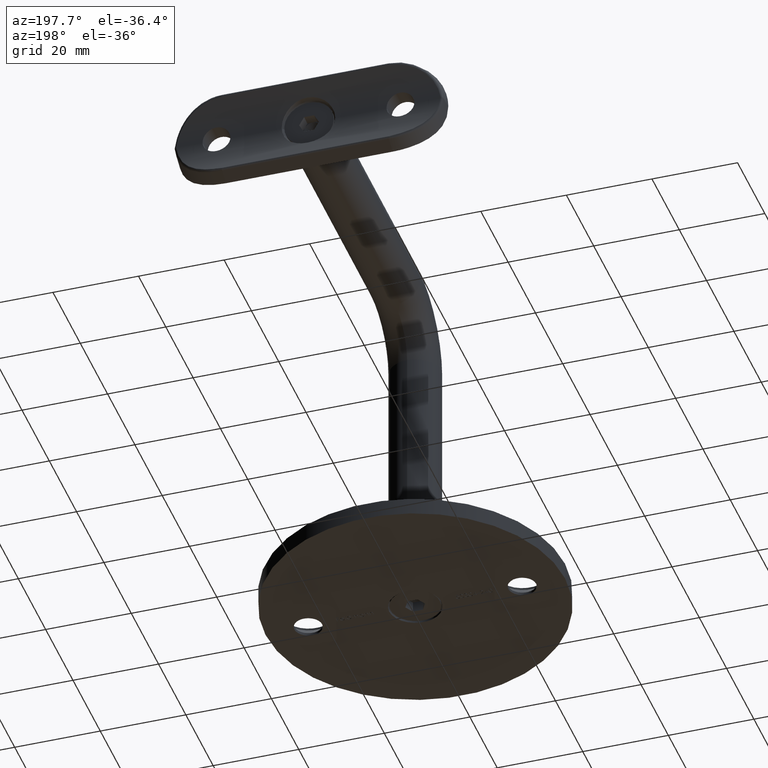
[diagram: clean part render]
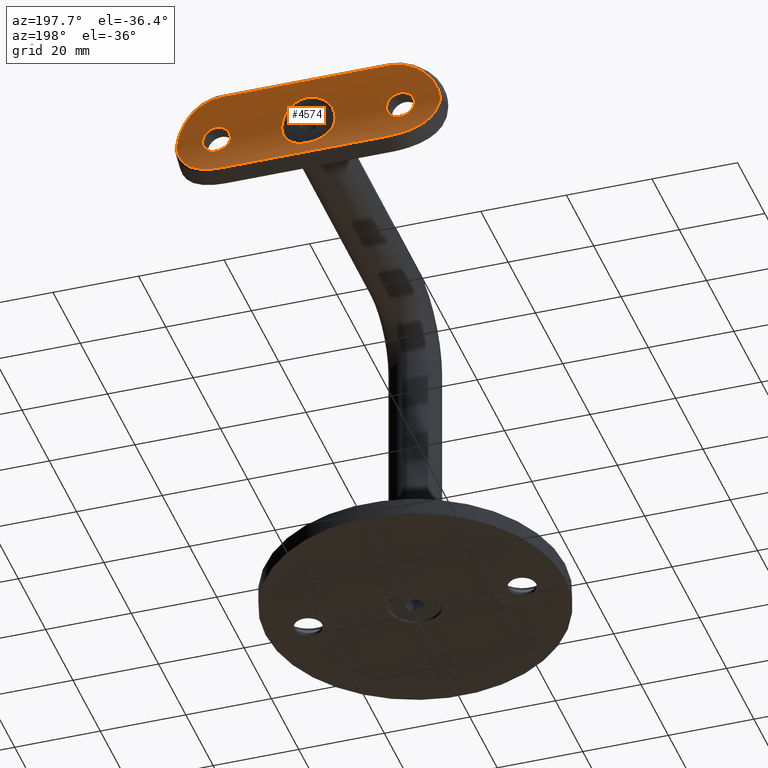
[diagram: same view with one face highlighted and labeled with its STEP entity id]
A machine part, auxiliary view. The second image highlights one B-rep face of the part: STEP entity #4574.
In plain terms, the highlighted cylindrical surface (partial cylindrical patch) has radius 21.2 mm, axis along (-1, -0, 0).
Its self-contained STEP definition (entity closure, byte-faithful):
#12 = CARTESIAN_POINT ( 'NONE',  ( -4.707645724980025648, 0.5272206391724109098, -4.130946839769451984 ) ) ;
#93 = CARTESIAN_POINT ( 'NONE',  ( -5.422976845275771396, 0.7039789746981586216, -3.134116042011573899 ) ) ;
#116 = CARTESIAN_POINT ( 'NONE',  ( 2.146772466492731013, 0.1084242658263275677, -19.05056654316347320 ) ) ;
#123 = EDGE_CURVE ( 'NONE', #10272, #1168, #4560, .T. ) ;
#146 = CARTESIAN_POINT ( 'NONE',  ( -1.986840235901172091, 0.09255405855546659788, 24.08083716629823812 ) ) ;
#164 = CARTESIAN_POINT ( 'NONE',  ( -0.6963605954796037167, 0.008645272120852618564, 30.79787574279946227 ) ) ;
#170 = CARTESIAN_POINT ( 'NONE',  ( 2.448245710141878195, 0.1413021867626944594, -23.64788291266891207 ) ) ;
#191 = VERTEX_POINT ( 'NONE', #14380 ) ;
#287 = VERTEX_POINT ( 'NONE', #4214 ) ;
#348 = CARTESIAN_POINT ( 'NONE',  ( 5.306312453125241468, 0.6744888501974815043, 3.308583858081395768 ) ) ;
#390 = CARTESIAN_POINT ( 'NONE',  ( 9.566484978522375116, 2.281063973388878896, 21.92232553221910507 ) ) ;
#399 = CARTESIAN_POINT ( 'NONE',  ( 3.140809521346286548, 0.2311535060075870229, 5.418768491723931824 ) ) ;
#400 = CARTESIAN_POINT ( 'NONE',  ( -3.646910745505126616, 0.3153270595898976514, -5.079778533533594320 ) ) ;
#438 = CARTESIAN_POINT ( 'NONE',  ( -2.146746746564081931, 0.1084328004752495300, -19.05074617262831538 ) ) ;
#457 = CARTESIAN_POINT ( 'NONE',  ( 5.848929209183459044, 0.8226445954373750036, -2.212212337359573677 ) ) ;
#458 = CARTESIAN_POINT ( 'NONE',  ( -3.140879071071891904, 0.2311561442244723097, 5.418772609613540681 ) ) ;
#519 = CARTESIAN_POINT ( 'NONE',  ( -1.439361432263682516, 0.04801136877107863715, -18.57843283337540541 ) ) ;
#524 = CYLINDRICAL_SURFACE ( 'NONE', #10859, 21.19999999999999574 ) ;
#542 = CARTESIAN_POINT ( 'NONE',  ( 4.277827131874097688, 0.4355678912589457941, -4.561112980212947754 ) ) ;
#590 = CARTESIAN_POINT ( 'NONE',  ( -2.583674240239131503, 0.1576915756132384328, -19.51705697634180936 ) ) ;
#605 = CARTESIAN_POINT ( 'NONE',  ( 0.8234910764539794537, 0.01219155373319959386, -6.208994146085437649 ) ) ;
#652 = CARTESIAN_POINT ( 'NONE',  ( 0.6963605954796017183, 0.008645272120852314987, 30.79787574279945872 ) ) ;
#798 = DIRECTION ( 'NONE',  ( -1.000000000000000000, 0.000000000000000000, 0.000000000000000000 ) ) ;
#986 = B_SPLINE_CURVE_WITH_KNOTS ( 'NONE', 3,
 ( #18616, #18692, #605, #9580, #18499, #3336, #12350, #15478, #16973, #6417, #17117, #4958, #542, #3514, #3588, #15525, #4847, #457, #3465, #15407, #3407, #12459, #13989, #15589, #4896, #12406, #16924, #18422, #9375, #6493, #348, #1844, #17040, #13914, #9514, #7940, #9430, #399, #1994, #14058, #6542, #17241, #3665, #11168, #14273, #5228 ),
 .UNSPECIFIED., .F., .F.,
 ( 4, 2, 2, 2, 2, 2, 2, 2, 2, 2, 2, 2, 2, 2, 2, 2, 2, 2, 2, 2, 2, 2, 4 ),
 ( 0.000000000000000000, 0.001228132618127827621, 0.001842198927191741322, 0.002456265236255654807, 0.003684397854383480910, 0.004298464163447393745, 0.004912530472511307013, 0.006140663090639133549, 0.007368795708766960953, 0.007982862017830874221, 0.008596928326894789224, 0.009825060945022614026, 0.01105319356315043883, 0.01228132618127826536, 0.01289539249034217690, 0.01350945879940608843, 0.01412352510846999823, 0.01473759141753390976, 0.01596572403566174150, 0.01719385665378957151, 0.01842198927191740151, 0.01903605558098131478, 0.01965012189004522805 ),
 .UNSPECIFIED. ) ;
#1133 = B_SPLINE_CURVE_WITH_KNOTS ( 'NONE', 3,
 ( #8132, #11217, #1899, #14043, #3449, #519, #11061, #1978, #438, #6475, #590, #18759, #11144, #7982, #18543, #18821, #5088, #15726, #13966, #15646, #6591, #2098, #12660, #17100, #12715, #2041, #15570, #3643, #14172, #5139, #6666, #8194, #9490, #3718 ),
 .UNSPECIFIED., .F., .F.,
 ( 4, 2, 2, 2, 2, 2, 2, 2, 2, 2, 2, 2, 2, 2, 2, 2, 4 ),
 ( 0.01017598832819750082, 0.01081183111334636446, 0.01144767389849522810, 0.01208351668364409173, 0.01271935946879295537, 0.01335520225394181901, 0.01399104503909068091, 0.01462688782423954455, 0.01526273060938840818, 0.01589857339453727009, 0.01653441617968613719, 0.01717025896483499736, 0.01780610174998386100, 0.01844194453513272464, 0.01907778732028158827, 0.01971363010543045191, 0.02034947289057931555 ),
 .UNSPECIFIED. ) ;
#1168 = VERTEX_POINT ( 'NONE', #6768 ) ;
#1328 = CARTESIAN_POINT ( 'NONE',  ( -3.084168572394265340, 0.2253804314946667164, 22.54674660612335657 ) ) ;
#1341 = CARTESIAN_POINT ( 'NONE',  ( -7.961314996402538924, 1.550569222153817650, -26.06667105966472420 ) ) ;
#1350 = CARTESIAN_POINT ( 'NONE',  ( 1.387778780781445676E-14, 0.000000000000000000, -30.89612722721100369 ) ) ;
#1380 = CARTESIAN_POINT ( 'NONE',  ( 1.982938509338513233, 0.09220263752459890993, 18.91635450782080596 ) ) ;
#1386 = CARTESIAN_POINT ( 'NONE',  ( 3.980101132466330944E-16, 1.666400480375174686E-13, 18.25000000000005329 ) ) ;
#1402 = CARTESIAN_POINT ( 'NONE',  ( -8.138925242327825771, 1.623748329730087203, -25.77605957762519395 ) ) ;
#1450 = CARTESIAN_POINT ( 'NONE',  ( 2.920988639077604976, 0.2020350234706673187, 22.94052626282845253 ) ) ;
#1483 = CARTESIAN_POINT ( 'NONE',  ( 1.387778780781445676E-14, 0.000000000000000000, -30.89612722721100369 ) ) ;
#1495 = CARTESIAN_POINT ( 'NONE',  ( 8.904028815678717734, 1.958941227809908092, -24.25532854542019123 ) ) ;
#1503 = CARTESIAN_POINT ( 'NONE',  ( 2.584254445682796941, 0.1577643001857342298, -19.51785711993775507 ) ) ;
#1528 = CARTESIAN_POINT ( 'NONE',  ( 2.584254445682800938, 0.1577643001857335636, 19.51785711993776573 ) ) ;
#1549 = CARTESIAN_POINT ( 'NONE',  ( -9.498101785892117732, 2.246516363973550146, -22.26151695138478104 ) ) ;
#1561 = CARTESIAN_POINT ( 'NONE',  ( 0.000000000000000000, 0.000000000000000000, -24.75000000000009237 ) ) ;
#1580 = CARTESIAN_POINT ( 'NONE',  ( 0.2150763702856136605, 2.668153783851045144E-17, 24.75000000000010658 ) ) ;
#1599 = CARTESIAN_POINT ( 'NONE',  ( -9.786144100064893436, 2.393847186285948503, -20.20379068883981688 ) ) ;
#1603 = CARTESIAN_POINT ( 'NONE',  ( -8.630651940699019420, 1.833049251100111743, 24.88160642046348414 ) ) ;
#1664 = CARTESIAN_POINT ( 'NONE',  ( 3.980101132466330944E-16, 1.662152414455550914E-13, -18.25000000000004974 ) ) ;
#1682 = CARTESIAN_POINT ( 'NONE',  ( 2.921096390877591986, 0.2020480752346212883, -20.05946724193338682 ) ) ;
#1732 = EDGE_CURVE ( 'NONE', #18971, #8040, #15095, .T. ) ;
#1739 = CARTESIAN_POINT ( 'NONE',  ( -7.369745280326733372, 1.320855561925882160, 26.90753331144383154 ) ) ;
#1750 = CARTESIAN_POINT ( 'NONE',  ( 2.148951533804915659, 0.1086589342490722476, -23.94730777981044767 ) ) ;
#1792 = CARTESIAN_POINT ( 'NONE',  ( -8.904028815678699971, 1.958941227809895658, -24.25532854542017702 ) ) ;
#1796 = CARTESIAN_POINT ( 'NONE',  ( -6.716344212987833906, 1.086700003243379564, 27.69146406474428801 ) ) ;
#1835 = ORIENTED_EDGE ( 'NONE', *, *, #16048, .T. ) ;
#1844 = CARTESIAN_POINT ( 'NONE',  ( 5.080515492331174165, 0.6174364535648202423, 3.645825191685927447 ) ) ;
#1845 = B_SPLINE_CURVE_WITH_KNOTS ( 'NONE', 3,
 ( #3136, #13991, #12088, #6494, #16974, #15526, #458, #3064, #18558, #7605, #18154, #6419, #11020, #18046, #17042, #9516, #15055, #8989, #15127, #9127, #13602, #19559, #16593, #10517, #7941, #1995, #16666, #18501, #93, #10636, #12, #7532, #12534, #9431, #400, #13466, #12013, #6041, #4435, #9070, #4580, #18102 ),
 .UNSPECIFIED., .F., .F.,
 ( 4, 2, 2, 2, 2, 2, 2, 2, 2, 2, 2, 2, 2, 2, 2, 2, 2, 2, 2, 2, 4 ),
 ( 0.01965012189004522805, 0.02087792266696678750, 0.02210572344388834695, 0.02333352422080990293, 0.02456132499773146238, 0.02517522538619224037, 0.02578912577465301836, 0.02701692655157457434, 0.02824472732849613033, 0.02885862771695690832, 0.02947252810541768631, 0.03070032888233924576, 0.03131422927080002722, 0.03192812965926080521, 0.03315593043618236119, 0.03438373121310392411, 0.03499763160156470210, 0.03561153199002548009, 0.03683933276694703607, 0.03806713354386859899, 0.03929493432079015497 ),
 .UNSPECIFIED. ) ;
#1851 = CARTESIAN_POINT ( 'NONE',  ( -0.3496111230705252759, -2.823443157514334669E-17, 30.85369533552998078 ) ) ;
#1891 = CARTESIAN_POINT ( 'NONE',  ( 0.4279129834556275602, 0.003291781754169194243, 18.27127959555563308 ) ) ;
#1899 = CARTESIAN_POINT ( 'NONE',  ( -0.4233678462630732220, 0.003186138682740531029, -18.27058512242423305 ) ) ;
#1978 = CARTESIAN_POINT ( 'NONE',  ( -1.983327530134727734, 0.09222711508517912604, -18.91651586614755942 ) ) ;
#1994 = CARTESIAN_POINT ( 'NONE',  ( 2.774690400615363206, 0.1789415371176219516, 5.615163695568388569 ) ) ;
#1995 = CARTESIAN_POINT ( 'NONE',  ( -5.918924777022701811, 0.8429312984810782838, -2.017750617282092485 ) ) ;
#2024 = B_SPLINE_CURVE_WITH_KNOTS ( 'NONE', 3,
 ( #1386, #13272, #14663, #8799, #14801, #4229, #10300, #5688, #2588, #16201, #5827, #2850, #11683, #14736, #11804, #14854, #16396, #4374, #7329, #10358, #1328, #15193, #12073, #9168, #4486, #18143, #146, #6087, #7972, #7520, #3198, #13594, #7591, #7664 ),
 .UNSPECIFIED., .F., .F.,
 ( 4, 2, 2, 2, 2, 2, 2, 2, 2, 2, 2, 2, 2, 2, 2, 2, 4 ),
 ( 0.01017598832819751643, 0.01081183111334638181, 0.01144767389849524718, 0.01208351668364411255, 0.01271935946879297619, 0.01335520225394184156, 0.01399104503909070693, 0.01462688782423957057, 0.01526273060938843421, 0.01589857339453729784, 0.01653441617968616495, 0.01717025896483503206, 0.01780610174998389569, 0.01844194453513275933, 0.01907778732028162644, 0.01971363010543049007, 0.02034947289057935371 ),
 .UNSPECIFIED. ) ;
#2041 = CARTESIAN_POINT ( 'NONE',  ( -2.150169383533360623, 0.1087842265591556085, -23.94622616599953702 ) ) ;
#2098 = CARTESIAN_POINT ( 'NONE',  ( -2.921365973794397330, 0.2020862304459463688, -22.93992884807950361 ) ) ;
#2188 = CARTESIAN_POINT ( 'NONE',  ( 7.961314996402542477, 1.550569222153812987, 26.06667105966472420 ) ) ;
#2438 = FACE_BOUND ( 'NONE', #16581, .T. ) ;
#2442 = ORIENTED_EDGE ( 'NONE', *, *, #19243, .T. ) ;
#2588 = CARTESIAN_POINT ( 'NONE',  ( -2.146746746564088149, 0.1084328004752498215, 19.05074617262832959 ) ) ;
#2626 = CARTESIAN_POINT ( 'NONE',  ( 9.730737802063369912, 2.364718140661991264, -20.89720366981356392 ) ) ;
#2709 = CARTESIAN_POINT ( 'NONE',  ( 9.786144100064896989, 2.393847186285949391, -19.50000000000004974 ) ) ;
#2735 = EDGE_LOOP ( 'NONE', ( #10869, #18882, #13703, #15360, #14728, #1835 ) ) ;
#2801 = CARTESIAN_POINT ( 'NONE',  ( -4.588654109999604991, 0.4932363685649039375, -29.39409139998914000 ) ) ;
#2850 = CARTESIAN_POINT ( 'NONE',  ( -2.819361986327545200, 0.1879721493439700797, 19.86946830610344605 ) ) ;
#2914 = FACE_BOUND ( 'NONE', #5289, .T. ) ;
#2924 = CARTESIAN_POINT ( 'NONE',  ( 1.628966586198404620, 0.06193338804991646573, 24.32029146251907648 ) ) ;
#2964 = CARTESIAN_POINT ( 'NONE',  ( 4.588654109999626307, 0.4932363685649093776, -29.39409139998914355 ) ) ;
#2971 = CARTESIAN_POINT ( 'NONE',  ( 3.250079504832140920, 0.2506090012436514303, -21.28889479561997433 ) ) ;
#2993 = CARTESIAN_POINT ( 'NONE',  ( 3.250079504832142696, 0.2506090012436499870, 21.28889479561998499 ) ) ;
#3018 = CARTESIAN_POINT ( 'NONE',  ( 5.173748335101508111, 0.6336291749135072315, -29.01565426583600171 ) ) ;
#3024 = CARTESIAN_POINT ( 'NONE',  ( 1.982938509338514121, 0.09220263752459752216, -18.91635450782080596 ) ) ;
#3048 = CARTESIAN_POINT ( 'NONE',  ( 1.631209832495475354, 0.06211199978788668058, 18.68105983684548832 ) ) ;
#3064 = CARTESIAN_POINT ( 'NONE',  ( -3.817247833124775003, 0.3436783452235538938, 4.965565115301533439 ) ) ;
#3136 = CARTESIAN_POINT ( 'NONE',  ( 7.653600344584874865E-16, 1.649589026767971619E-13, 6.249999999999999112 ) ) ;
#3154 = CARTESIAN_POINT ( 'NONE',  ( -8.138925242327848864, 1.623748329730101858, 25.77605957762519751 ) ) ;
#3169 = CARTESIAN_POINT ( 'NONE',  ( 0.2122731573180401954, 1.658574155227461678E-13, -18.25000000000005329 ) ) ;
#3198 = CARTESIAN_POINT ( 'NONE',  ( -0.8473627998238463244, 0.01590005808953499564, 24.64488691449727398 ) ) ;
#3232 = CARTESIAN_POINT ( 'NONE',  ( 1.442403631853363954, 0.04820789140687745805, -24.42016099372732896 ) ) ;
#3235 = CARTESIAN_POINT ( 'NONE',  ( 9.786144100064896989, 2.393847186285949391, 31.50000000000009592 ) ) ;
#3336 = CARTESIAN_POINT ( 'NONE',  ( 2.017691307718032068, 0.09530856847514787566, -5.918936514102242086 ) ) ;
#3407 = CARTESIAN_POINT ( 'NONE',  ( 6.088604519415612870, 0.8930881013226109610, -1.426119836423863863 ) ) ;
#3449 = CARTESIAN_POINT ( 'NONE',  ( -1.048197691731639791, 0.02502264493834095022, -18.41639859241901078 ) ) ;
#3455 = CARTESIAN_POINT ( 'NONE',  ( 1.383814501144044584, 0.04241292802588791933, 30.65758117817206951 ) ) ;
#3465 = CARTESIAN_POINT ( 'NONE',  ( 5.918027562835895594, 0.8426709843892054019, -2.020282588223544451 ) ) ;
#3502 = CARTESIAN_POINT ( 'NONE',  ( 9.730737802063345043, 2.364718140661965062, 20.89720366981355326 ) ) ;
#3514 = CARTESIAN_POINT ( 'NONE',  ( 4.707499128267428112, 0.5271860881920453767, -4.131123129516026005 ) ) ;
#3552 = EDGE_CURVE ( 'NONE', #10225, #11564, #986, .T. ) ;
#3573 = CARTESIAN_POINT ( 'NONE',  ( 1.725848776065689760, 0.06769569826179447358, 30.57265922836111116 ) ) ;
#3588 = CARTESIAN_POINT ( 'NONE',  ( 4.965340698435812605, 0.5883310780807936569, -3.817917816163437728 ) ) ;
#3643 = CARTESIAN_POINT ( 'NONE',  ( -1.631443816220980558, 0.06211459562443492899, -24.31897954523555327 ) ) ;
#3665 = CARTESIAN_POINT ( 'NONE',  ( 0.8197486358439416421, 0.01486115208428876767, 6.199434119118708786 ) ) ;
#3715 = VECTOR ( 'NONE', #4605, 1000.000000000000000 ) ;
#3718 = CARTESIAN_POINT ( 'NONE',  ( 0.000000000000000000, 0.000000000000000000, -24.75000000000009237 ) ) ;
#3721 = CARTESIAN_POINT ( 'NONE',  ( 7.576938533877886073, 1.399175047005001948, 26.63232691431737464 ) ) ;
#4024 = DIRECTION ( 'NONE',  ( -4.190864831286737202E-31, -5.527938071378096397E-48, -1.000000000000000000 ) ) ;
#4146 = CARTESIAN_POINT ( 'NONE',  ( 9.566484978522408866, 2.281063973388888666, -21.92232553221910507 ) ) ;
#4214 = CARTESIAN_POINT ( 'NONE',  ( 1.387778780781445676E-14, 0.000000000000000000, -30.89612722721100369 ) ) ;
#4229 = CARTESIAN_POINT ( 'NONE',  ( -1.439361432263691398, 0.04801136877108297396, 18.57843283337541607 ) ) ;
#4258 = CARTESIAN_POINT ( 'NONE',  ( 8.138925242327863074, 1.623748329730097639, -25.77605957762520461 ) ) ;
#4325 = CARTESIAN_POINT ( 'NONE',  ( -6.234549295242451272, 0.9299808624874315033, -28.16517789940066763 ) ) ;
#4369 = CARTESIAN_POINT ( 'NONE',  ( 2.820240372269855467, 0.1880846098825453561, 23.12923282234743994 ) ) ;
#4374 = CARTESIAN_POINT ( 'NONE',  ( -3.250137710635875532, 0.2506180310371231013, 21.71267900241731752 ) ) ;
#4399 = CARTESIAN_POINT ( 'NONE',  ( 9.235871313527276527, 2.117188387549063133, -23.27048624469879101 ) ) ;
#4400 = EDGE_CURVE ( 'NONE', #8040, #18971, #1133, .T. ) ;
#4435 = CARTESIAN_POINT ( 'NONE',  ( -1.628116089997184934, 0.05877412872685824213, -6.048128515370915892 ) ) ;
#4452 = CARTESIAN_POINT ( 'NONE',  ( 6.716344212987845452, 1.086700003243370460, -27.69146406474427025 ) ) ;
#4486 = CARTESIAN_POINT ( 'NONE',  ( -2.449135080784321961, 0.1414067769046916390, 23.64685541878735009 ) ) ;
#4557 = CARTESIAN_POINT ( 'NONE',  ( 0.8423372769297760021, 0.01571955981843533440, 24.64609465822474377 ) ) ;
#4560 = B_SPLINE_CURVE_WITH_KNOTS ( 'NONE', 3,
 ( #8138, #12721, #652, #3455, #3573, #14097, #17225, #12664, #4885, #11221, #5090, #12444, #3721, #2188, #18483, #6400, #16961, #17027, #11012, #14048, #390, #3502, #7987, #9628 ),
 .UNSPECIFIED., .F., .F.,
 ( 4, 2, 2, 2, 2, 2, 2, 2, 2, 2, 2, 4 ),
 ( 0.000000000000000000, 0.001053485587485947965, 0.002106971174971895931, 0.004213942349943795330, 0.006320913524915695164, 0.008427884699887594130, 0.009481370287373547950, 0.01053485587485950177, 0.01264182704983140768, 0.01369531263731736150, 0.01474879822480331185, 0.01685576939977521602 ),
 .UNSPECIFIED. ) ;
#4574 = ADVANCED_FACE ( 'NONE', ( #9040, #2914, #2438, #9496 ), #524, .F. ) ;
#4580 = CARTESIAN_POINT ( 'NONE',  ( -0.4153279907616338473, -6.616268465775244630E-17, -6.250000000000023093 ) ) ;
#4601 = CARTESIAN_POINT ( 'NONE',  ( 2.582659189079625772, 0.1575615568941706457, -23.48444623506348350 ) ) ;
#4605 = DIRECTION ( 'NONE',  ( -4.190864831286737202E-31, -5.527938071378096397E-48, -1.000000000000000000 ) ) ;
#4648 = CARTESIAN_POINT ( 'NONE',  ( -9.786144100064896989, 2.393847186285949391, 19.50000000000005329 ) ) ;
#4658 = CARTESIAN_POINT ( 'NONE',  ( 1.441005896736209380, 0.04811340504739453072, -18.57915840024826792 ) ) ;
#4707 = CARTESIAN_POINT ( 'NONE',  ( -9.498101785892149707, 2.246516363973558139, 22.26151695138479170 ) ) ;
#4733 = CARTESIAN_POINT ( 'NONE',  ( 0.000000000000000000, 0.000000000000000000, 24.75000000000010303 ) ) ;
#4779 = CARTESIAN_POINT ( 'NONE',  ( -1.725848776065697310, 0.06769569826179493155, 30.57265922836112537 ) ) ;
#4847 = CARTESIAN_POINT ( 'NONE',  ( 5.614657142301190618, 0.7563709218246845722, -2.775527058565209870 ) ) ;
#4852 = CARTESIAN_POINT ( 'NONE',  ( -2.728825075595659122, 0.1656264627808893553, 30.27558004452012952 ) ) ;
#4885 = CARTESIAN_POINT ( 'NONE',  ( 5.173748335101470808, 0.6336291749135090079, 29.01565426583596974 ) ) ;
#4896 = CARTESIAN_POINT ( 'NONE',  ( 6.208949308434554837, 0.9294302651717247787, 0.8242155544780244147 ) ) ;
#4958 = CARTESIAN_POINT ( 'NONE',  ( 4.127395437426093494, 0.4050381657139913161, -4.697753110588072545 ) ) ;
#5088 = CARTESIAN_POINT ( 'NONE',  ( -3.249860940080326444, 0.2505750940570107277, -21.28313283718644655 ) ) ;
#5090 = CARTESIAN_POINT ( 'NONE',  ( 6.716344212987815254, 1.086700003243373569, 27.69146406474425959 ) ) ;
#5139 = CARTESIAN_POINT ( 'NONE',  ( -1.052626194037020291, 0.02524415546286248174, -24.58208615108132733 ) ) ;
#5228 = CARTESIAN_POINT ( 'NONE',  ( 7.653600344584874865E-16, 1.649589026767971619E-13, 6.249999999999999112 ) ) ;
#5289 = EDGE_LOOP ( 'NONE', ( #14853, #2442 ) ) ;
#5336 = VERTEX_POINT ( 'NONE', #4733 ) ;
#5347 = LINE ( 'NONE', #3235, #3715 ) ;
#5688 = CARTESIAN_POINT ( 'NONE',  ( -1.983327530134735062, 0.09222711508518081913, 18.91651586614757008 ) ) ;
#5792 = CARTESIAN_POINT ( 'NONE',  ( 2.728825075595670668, 0.1656264627808922973, -30.27558004452013307 ) ) ;
#5827 = CARTESIAN_POINT ( 'NONE',  ( -2.583674240239134168, 0.1576915756132347135, 19.51705697634181647 ) ) ;
#5896 = CARTESIAN_POINT ( 'NONE',  ( -1.383814501144029263, 0.04241292802588951527, -30.65758117817208728 ) ) ;
#6003 = CARTESIAN_POINT ( 'NONE',  ( 1.628966586198404398, 0.06193338804991387753, -24.32029146251906937 ) ) ;
#6041 = CARTESIAN_POINT ( 'NONE',  ( -2.027153255933459963, 0.09373407992748196416, -5.926192729194697861 ) ) ;
#6055 = EDGE_CURVE ( 'NONE', #6587, #5336, #2024, .T. ) ;
#6062 = CARTESIAN_POINT ( 'NONE',  ( 0.2150763702856132442, 2.654036568063471520E-17, -24.75000000000009948 ) ) ;
#6082 = CARTESIAN_POINT ( 'NONE',  ( 3.145719621873082961, 0.2346424750290280470, 20.65610111859622222 ) ) ;
#6087 = CARTESIAN_POINT ( 'NONE',  ( -1.631443816220983889, 0.06211459562443816945, 24.31897954523555327 ) ) ;
#6114 = CARTESIAN_POINT ( 'NONE',  ( 3.229234686348994465, 0.2473431560047221200, -21.92465043484687470 ) ) ;
#6181 = VECTOR ( 'NONE', #17166, 1000.000000000000000 ) ;
#6250 = CARTESIAN_POINT ( 'NONE',  ( -1.383814501144047471, 0.04241292802588832872, 30.65758117817209083 ) ) ;
#6260 = CARTESIAN_POINT ( 'NONE',  ( 0.8423372769297751139, 0.01571955981843406458, -24.64609465822474377 ) ) ;
#6356 = CARTESIAN_POINT ( 'NONE',  ( -5.173748335101487683, 0.6336291749135131157, 29.01565426583600171 ) ) ;
#6400 = CARTESIAN_POINT ( 'NONE',  ( 8.630651940698999880, 1.833049251100101307, 24.88160642046347348 ) ) ;
#6417 = CARTESIAN_POINT ( 'NONE',  ( 3.646235791098418222, 0.3152097383525713226, -5.080259362464126127 ) ) ;
#6419 = CARTESIAN_POINT ( 'NONE',  ( -4.960034041242776581, 0.5879716781306043583, 3.808165311222249994 ) ) ;
#6475 = CARTESIAN_POINT ( 'NONE',  ( -2.446491921321319651, 0.1410967568379402071, -19.35010623897647264 ) ) ;
#6493 = CARTESIAN_POINT ( 'NONE',  ( 5.411053893911616619, 0.7019396886831930082, 3.134428576142864298 ) ) ;
#6494 = CARTESIAN_POINT ( 'NONE',  ( -1.630934952954226969, 0.05892148739312366712, 6.047621632877021369 ) ) ;
#6542 = CARTESIAN_POINT ( 'NONE',  ( 1.631215159826665317, 0.05898490561494921375, 6.047396661953679420 ) ) ;
#6587 = VERTEX_POINT ( 'NONE', #18377 ) ;
#6591 = CARTESIAN_POINT ( 'NONE',  ( -3.084168572394264896, 0.2253804314946707965, -22.54674660612334591 ) ) ;
#6666 = CARTESIAN_POINT ( 'NONE',  ( -0.8473627998238457693, 0.01590005808953778854, -24.64488691449727042 ) ) ;
#6768 = CARTESIAN_POINT ( 'NONE',  ( 9.786144100064896989, 2.393847186285949391, 19.50000000000005329 ) ) ;
#6829 = ORIENTED_EDGE ( 'NONE', *, *, #7205, .F. ) ;
#7205 = EDGE_CURVE ( 'NONE', #5336, #6587, #13893, .T. ) ;
#7291 = CARTESIAN_POINT ( 'NONE',  ( 6.234549295242478806, 0.9299808624874390528, -28.16517789940068539 ) ) ;
#7329 = CARTESIAN_POINT ( 'NONE',  ( -3.229193408776422469, 0.2473379070171739802, 21.92398131921983051 ) ) ;
#7365 = CARTESIAN_POINT ( 'NONE',  ( 7.576938533877918935, 1.399175047005013051, -26.63232691431736399 ) ) ;
#7398 = CARTESIAN_POINT ( 'NONE',  ( 3.249920036851538629, 0.2505842620713077951, 21.71354612878069190 ) ) ;
#7409 = B_SPLINE_CURVE_WITH_KNOTS ( 'NONE', 3,
 ( #4648, #16679, #10722, #13738, #4707, #7687, #7622, #13806, #1603, #3154, #13667, #15280, #1739, #1796, #12409, #6356, #12283, #15225, #4852, #4779, #6250, #164, #1851, #16797 ),
 .UNSPECIFIED., .F., .F.,
 ( 4, 2, 2, 2, 2, 2, 2, 2, 2, 2, 2, 4 ),
 ( 0.000000000000000000, 0.002082930985801098069, 0.003124396478701646235, 0.004165861971602195270, 0.006248792957403291604, 0.007290258450303841072, 0.008331723943204388805, 0.01041465492900547213, 0.01249758591480655719, 0.01458051690060764571, 0.01562198239350819085, 0.01666344788640873598 ),
 .UNSPECIFIED. ) ;
#7495 = CARTESIAN_POINT ( 'NONE',  ( 3.249920036851536853, 0.2505842620713011892, -21.71354612878068124 ) ) ;
#7520 = CARTESIAN_POINT ( 'NONE',  ( -1.052626194037020291, 0.02524415546286520179, 24.58208615108132022 ) ) ;
#7532 = CARTESIAN_POINT ( 'NONE',  ( -4.278095719262146268, 0.4356235174236143259, -4.560858968775711730 ) ) ;
#7565 = EDGE_CURVE ( 'NONE', #1168, #13747, #5347, .T. ) ;
#7591 = CARTESIAN_POINT ( 'NONE',  ( -0.2150234515079659792, -3.030495655732046435E-17, 24.75000000000009592 ) ) ;
#7605 = CARTESIAN_POINT ( 'NONE',  ( -4.562919216888525753, 0.4963409302517042820, 4.275959394734264229 ) ) ;
#7616 = CARTESIAN_POINT ( 'NONE',  ( -9.333094242841307064, 2.164721401289332547, -22.93476984843748667 ) ) ;
#7622 = CARTESIAN_POINT ( 'NONE',  ( -9.235871313527272974, 2.117188387549056472, 23.27048624469880167 ) ) ;
#7636 = CARTESIAN_POINT ( 'NONE',  ( 3.145719621873081628, 0.2346424750290290739, -20.65610111859621512 ) ) ;
#7659 = CARTESIAN_POINT ( 'NONE',  ( 0.4264954454844998577, 0.003269792457477604941, 24.72886130417469630 ) ) ;
#7664 = CARTESIAN_POINT ( 'NONE',  ( 0.000000000000000000, 0.000000000000000000, 24.75000000000010303 ) ) ;
#7687 = CARTESIAN_POINT ( 'NONE',  ( -9.333094242841335486, 2.164721401289351643, 22.93476984843750088 ) ) ;
#7698 = CARTESIAN_POINT ( 'NONE',  ( 0.4264954454844991361, 0.003269792457474840659, -24.72886130417468209 ) ) ;
#7878 = CARTESIAN_POINT ( 'NONE',  ( -9.730737802063343267, 2.364718140661975720, -20.89720366981354971 ) ) ;
#7940 = CARTESIAN_POINT ( 'NONE',  ( 4.129377516820835758, 0.4039587185304565620, 4.709273196560658015 ) ) ;
#7941 = CARTESIAN_POINT ( 'NONE',  ( -6.039009894633538877, 0.8782314714754074769, -1.623375360818845703 ) ) ;
#7945 = EDGE_CURVE ( 'NONE', #287, #191, #18643, .T. ) ;
#7972 = CARTESIAN_POINT ( 'NONE',  ( -1.443390716916757022, 0.04828777099946068158, 24.41957191817203210 ) ) ;
#7982 = CARTESIAN_POINT ( 'NONE',  ( -3.082938367075401143, 0.2251979699141389291, -20.44955789606239094 ) ) ;
#7987 = CARTESIAN_POINT ( 'NONE',  ( 9.786144100064895213, 2.393847186285949391, 20.20379068883982043 ) ) ;
#8040 = VERTEX_POINT ( 'NONE', #1664 ) ;
#8132 = CARTESIAN_POINT ( 'NONE',  ( 3.980101132466330944E-16, 1.662152414455550914E-13, -18.25000000000004974 ) ) ;
#8138 = CARTESIAN_POINT ( 'NONE',  ( 0.000000000000000000, 0.000000000000000000, 30.89612722721101079 ) ) ;
#8194 = CARTESIAN_POINT ( 'NONE',  ( -0.4274857573253122989, 0.003269827856462192289, -24.72886874102765375 ) ) ;
#8368 = CARTESIAN_POINT ( 'NONE',  ( 0.000000000000000000, 0.000000000000000000, -24.75000000000009237 ) ) ;
#8763 = CARTESIAN_POINT ( 'NONE',  ( 9.498101785892146154, 2.246516363973562580, -22.26151695138478459 ) ) ;
#8799 = CARTESIAN_POINT ( 'NONE',  ( -0.8434572887064074598, 0.01574315661016609247, 18.35405966571437020 ) ) ;
#8881 = CARTESIAN_POINT ( 'NONE',  ( -5.173748335101477913, 0.6336291749135001261, -29.01565426583598395 ) ) ;
#8908 = CARTESIAN_POINT ( 'NONE',  ( 3.229234686348995798, 0.2473431560047196776, 21.92465043484688181 ) ) ;
#8940 = CARTESIAN_POINT ( 'NONE',  ( 7.369745280326742254, 1.320855561925887267, -26.90753331144383509 ) ) ;
#8989 = CARTESIAN_POINT ( 'NONE',  ( -6.168284003584211916, 0.9171493886035310128, 1.027845399775952684 ) ) ;
#9040 = FACE_OUTER_BOUND ( 'NONE', #2735, .T. ) ;
#9070 = CARTESIAN_POINT ( 'NONE',  ( -0.8239995228952529116, 0.01219175731088060176, -6.208997127332151145 ) ) ;
#9076 = CARTESIAN_POINT ( 'NONE',  ( -9.786144100064896989, 2.393847186285949391, -19.50000000000004619 ) ) ;
#9086 = CARTESIAN_POINT ( 'NONE',  ( 7.961314996402571786, 1.550569222153834525, -26.06667105966473130 ) ) ;
#9112 = CARTESIAN_POINT ( 'NONE',  ( 2.148951533804916103, 0.1086589342490756893, 23.94730777981044767 ) ) ;
#9127 = CARTESIAN_POINT ( 'NONE',  ( -6.239616636880946920, 0.9390118224890474652, 0.4149482471970351583 ) ) ;
#9143 = CARTESIAN_POINT ( 'NONE',  ( 1.982036205794322159, 0.09211226320572421522, -24.08439713500639812 ) ) ;
#9162 = CARTESIAN_POINT ( 'NONE',  ( 2.448245710141878639, 0.1413021867626923500, 23.64788291266891918 ) ) ;
#9168 = CARTESIAN_POINT ( 'NONE',  ( -2.585957042374138926, 0.1579718341021918993, 23.48001378453503563 ) ) ;
#9184 = CARTESIAN_POINT ( 'NONE',  ( -9.235871313527249882, 2.117188387549049366, -23.27048624469879456 ) ) ;
#9278 = CARTESIAN_POINT ( 'NONE',  ( 3.980101132466330944E-16, 1.662152414455550914E-13, -18.25000000000004974 ) ) ;
#9321 = CARTESIAN_POINT ( 'NONE',  ( -9.566484978522383997, 2.281063973388874011, -21.92232553221910507 ) ) ;
#9375 = CARTESIAN_POINT ( 'NONE',  ( 5.604001178644882231, 0.7538475120881419356, 2.774764410090311717 ) ) ;
#9430 = CARTESIAN_POINT ( 'NONE',  ( 3.816241793582281439, 0.3435020602471835494, 4.966289861576287379 ) ) ;
#9431 = CARTESIAN_POINT ( 'NONE',  ( -3.812452987417502381, 0.3450014793686353998, -4.956750436386180958 ) ) ;
#9490 = CARTESIAN_POINT ( 'NONE',  ( -0.2150234515079658126, -2.636390048329004875E-17, -24.75000000000009237 ) ) ;
#9496 = FACE_BOUND ( 'NONE', #11285, .T. ) ;
#9514 = CARTESIAN_POINT ( 'NONE',  ( 4.562327866243707675, 0.4962095896634487469, 4.276598253280714523 ) ) ;
#9516 = CARTESIAN_POINT ( 'NONE',  ( -5.929191836853928699, 0.8453491750928936455, 2.019275300083386959 ) ) ;
#9580 = CARTESIAN_POINT ( 'NONE',  ( 1.425037745395229871, 0.04699528432503920911, -6.088807673837258960 ) ) ;
#9628 = CARTESIAN_POINT ( 'NONE',  ( 9.786144100064896989, 2.393847186285949391, 19.50000000000005329 ) ) ;
#10001 = CARTESIAN_POINT ( 'NONE',  ( 9.786144100064896989, 2.393847186285949391, -19.50000000000004974 ) ) ;
#10225 = VERTEX_POINT ( 'NONE', #13798 ) ;
#10261 = CARTESIAN_POINT ( 'NONE',  ( -0.3496111230705098993, -2.778268066994098210E-16, -30.85369533552997723 ) ) ;
#10272 = VERTEX_POINT ( 'NONE', #12670 ) ;
#10274 = CARTESIAN_POINT ( 'NONE',  ( 3.368459319491543980, 0.2601029505331531877, -30.02156205634353370 ) ) ;
#10300 = CARTESIAN_POINT ( 'NONE',  ( -1.628732243441258110, 0.06190889573728673018, 18.67950188072525819 ) ) ;
#10315 = CARTESIAN_POINT ( 'NONE',  ( -1.725848776065677104, 0.06769569826178942207, -30.57265922836111827 ) ) ;
#10358 = CARTESIAN_POINT ( 'NONE',  ( -3.146742611658177147, 0.2347966909457524509, 22.33991735683173019 ) ) ;
#10378 = CARTESIAN_POINT ( 'NONE',  ( -7.576938533877889626, 1.399175047004996841, -26.63232691431737109 ) ) ;
#10420 = CARTESIAN_POINT ( 'NONE',  ( 3.145685426611443347, 0.2346369294842381992, 22.34436239147629877 ) ) ;
#10454 = CARTESIAN_POINT ( 'NONE',  ( -6.716344212987816142, 1.086700003243364687, -27.69146406474425248 ) ) ;
#10517 = CARTESIAN_POINT ( 'NONE',  ( -6.089482261121203166, 0.8933518395995855288, -1.422256779302068397 ) ) ;
#10537 = CARTESIAN_POINT ( 'NONE',  ( 1.047707894291745490, 0.02498848433836381444, -18.41615146067328723 ) ) ;
#10556 = CARTESIAN_POINT ( 'NONE',  ( 3.228861059861451555, 0.2472859909413017976, 21.07318210255155222 ) ) ;
#10636 = CARTESIAN_POINT ( 'NONE',  ( -4.965941128128294579, 0.5884744755276192230, -3.817170410284997040 ) ) ;
#10663 = CARTESIAN_POINT ( 'NONE',  ( 0.8450918658946515727, 0.01582268415742954515, -18.35459625649043147 ) ) ;
#10690 = VERTEX_POINT ( 'NONE', #11005 ) ;
#10722 = CARTESIAN_POINT ( 'NONE',  ( -9.730737802063375241, 2.364718140661984158, 20.89720366981356037 ) ) ;
#10734 = CARTESIAN_POINT ( 'NONE',  ( 3.145685426611441571, 0.2346369294842328701, -22.34436239147628811 ) ) ;
#10784 = CARTESIAN_POINT ( 'NONE',  ( 0.4279129834556271716, 0.003291781754170546893, -18.27127959555563308 ) ) ;
#10859 = AXIS2_PLACEMENT_3D ( 'NONE', #14579, #4024, #798 ) ;
#10869 = ORIENTED_EDGE ( 'NONE', *, *, #123, .T. ) ;
#10907 = B_SPLINE_CURVE_WITH_KNOTS ( 'NONE', 3,
 ( #2709, #11657, #2626, #4146, #8763, #14819, #4399, #1495, #16422, #4258, #9086, #7365, #8940, #4452, #7291, #3018, #2964, #10274, #5792, #13488, #15019, #14880, #16616, #1350 ),
 .UNSPECIFIED., .F., .F.,
 ( 4, 2, 2, 2, 2, 2, 2, 2, 2, 2, 2, 4 ),
 ( 0.000000000000000000, 0.002082930985801083323, 0.003124396478701624551, 0.004165861971602165779, 0.006248792957403248235, 0.007290258450303789897, 0.008331723943204331559, 0.01041465492900542703, 0.01249758591480652076, 0.01458051690060762143, 0.01562198239350817176, 0.01666344788640872210 ),
 .UNSPECIFIED. ) ;
#11005 = CARTESIAN_POINT ( 'NONE',  ( -9.786144100064896989, 2.393847186285949391, 19.50000000000005329 ) ) ;
#11011 = CARTESIAN_POINT ( 'NONE',  ( -9.786144100064896989, 2.393847186285949391, 31.50000000000009592 ) ) ;
#11012 = CARTESIAN_POINT ( 'NONE',  ( 9.333094242841307064, 2.164721401289336988, 22.93476984843750444 ) ) ;
#11020 = CARTESIAN_POINT ( 'NONE',  ( -5.080992854234303024, 0.6175551972950766855, 3.645145832089341731 ) ) ;
#11061 = CARTESIAN_POINT ( 'NONE',  ( -1.628732243441246785, 0.06190889573728936002, -18.67950188072524398 ) ) ;
#11144 = CARTESIAN_POINT ( 'NONE',  ( -2.919325169900610639, 0.2018007979526012241, -20.05588153488187331 ) ) ;
#11168 = CARTESIAN_POINT ( 'NONE',  ( 0.4095757712310020837, 0.002963803421574926975, 6.239969463938239258 ) ) ;
#11217 = CARTESIAN_POINT ( 'NONE',  ( -0.2122209282609932302, 1.658379072951796415E-13, -18.25000000000004974 ) ) ;
#11221 = CARTESIAN_POINT ( 'NONE',  ( 6.234549295242453049, 0.9299808624874262852, 28.16517789940068539 ) ) ;
#11285 = EDGE_LOOP ( 'NONE', ( #15825, #17773 ) ) ;
#11564 = VERTEX_POINT ( 'NONE', #16237 ) ;
#11657 = CARTESIAN_POINT ( 'NONE',  ( 9.786144100064898765, 2.393847186285949391, -20.20379068883981688 ) ) ;
#11683 = CARTESIAN_POINT ( 'NONE',  ( -2.919325169900615524, 0.2018007979525963391, 20.05588153488188041 ) ) ;
#11804 = CARTESIAN_POINT ( 'NONE',  ( -3.145561265201495704, 0.2346188723399618981, 20.65570968324269785 ) ) ;
#11963 = CARTESIAN_POINT ( 'NONE',  ( -8.630651940698989222, 1.833049251100111521, -24.88160642046347704 ) ) ;
#11998 = CARTESIAN_POINT ( 'NONE',  ( 3.083140140979243604, 0.2252305219758023169, 22.54954152590613248 ) ) ;
#12013 = CARTESIAN_POINT ( 'NONE',  ( -2.780710919132619363, 0.1797369617772683059, -5.612197196358868823 ) ) ;
#12065 = CARTESIAN_POINT ( 'NONE',  ( 2.146772466492731013, 0.1084242658263246395, 19.05056654316347320 ) ) ;
#12073 = CARTESIAN_POINT ( 'NONE',  ( -2.821697825890794320, 0.1882855402324608018, 23.12654535482915463 ) ) ;
#12088 = CARTESIAN_POINT ( 'NONE',  ( -0.8195216734985084628, 0.01194832638823969603, 6.209835783809110943 ) ) ;
#12118 = CARTESIAN_POINT ( 'NONE',  ( 2.920988639077601867, 0.2020350234706630166, -22.94052626282844187 ) ) ;
#12144 = CARTESIAN_POINT ( 'NONE',  ( 2.449601441195976559, 0.1414470641364900527, 19.35341921613650129 ) ) ;
#12283 = CARTESIAN_POINT ( 'NONE',  ( -4.588654109999613873, 0.4932363685648994966, 29.39409139998914355 ) ) ;
#12350 = CARTESIAN_POINT ( 'NONE',  ( 2.212823183303215036, 0.1149437961057403063, -5.848745105909614495 ) ) ;
#12406 = CARTESIAN_POINT ( 'NONE',  ( 6.048203328111567245, 0.8808886663056585409, 1.627765123343547948 ) ) ;
#12409 = CARTESIAN_POINT ( 'NONE',  ( -6.234549295242467259, 0.9299808624874308371, 28.16517789940069250 ) ) ;
#12444 = CARTESIAN_POINT ( 'NONE',  ( 7.369745280326715609, 1.320855561925875499, 26.90753331144381733 ) ) ;
#12459 = CARTESIAN_POINT ( 'NONE',  ( 6.209628752300948129, 0.9296370487208300837, -0.8201840557807488219 ) ) ;
#12534 = CARTESIAN_POINT ( 'NONE',  ( -4.127779092319963539, 0.4051159935475684426, -4.697404861717735081 ) ) ;
#12660 = CARTESIAN_POINT ( 'NONE',  ( -2.821697825890792988, 0.1882855402324633276, -23.12654535482914397 ) ) ;
#12664 = CARTESIAN_POINT ( 'NONE',  ( 4.588654109999605879, 0.4932363685648976648, 29.39409139998912224 ) ) ;
#12670 = CARTESIAN_POINT ( 'NONE',  ( 0.000000000000000000, 0.000000000000000000, 30.89612722721101079 ) ) ;
#12715 = CARTESIAN_POINT ( 'NONE',  ( -2.449135080784321072, 0.1414067769046954415, -23.64685541878734298 ) ) ;
#12721 = CARTESIAN_POINT ( 'NONE',  ( 0.3496111230705247208, 3.239901023247698797E-17, 30.85369533552998078 ) ) ;
#12891 = EDGE_CURVE ( 'NONE', #13747, #287, #10907, .T. ) ;
#13272 = CARTESIAN_POINT ( 'NONE',  ( -0.2122209282609946179, 1.651001151283415442E-13, 18.25000000000005329 ) ) ;
#13446 = CARTESIAN_POINT ( 'NONE',  ( 2.582659189079627104, 0.1575615568941707567, 23.48444623506348350 ) ) ;
#13466 = CARTESIAN_POINT ( 'NONE',  ( -3.138434974276962386, 0.2307770013628923367, -5.420254390151180601 ) ) ;
#13488 = CARTESIAN_POINT ( 'NONE',  ( 1.725848776065708412, 0.06769569826179153149, -30.57265922836112892 ) ) ;
#13495 = CARTESIAN_POINT ( 'NONE',  ( 2.819422580313708071, 0.1879817580464991367, -19.86962649965414940 ) ) ;
#13567 = CARTESIAN_POINT ( 'NONE',  ( 1.631209832495475798, 0.06211199978788969900, -18.68105983684548832 ) ) ;
#13590 = CARTESIAN_POINT ( 'NONE',  ( 1.441005896736208269, 0.04811340504739548135, 18.57915840024826792 ) ) ;
#13594 = CARTESIAN_POINT ( 'NONE',  ( -0.4274857573253139642, 0.003269827856460961503, 24.72886874102765731 ) ) ;
#13602 = CARTESIAN_POINT ( 'NONE',  ( -6.249978594911349994, 0.9422171113509231200, 0.2066304448088224222 ) ) ;
#13667 = CARTESIAN_POINT ( 'NONE',  ( -7.961314996402569122, 1.550569222153823867, 26.06667105966473486 ) ) ;
#13703 = ORIENTED_EDGE ( 'NONE', *, *, #12891, .T. ) ;
#13738 = CARTESIAN_POINT ( 'NONE',  ( -9.566484978522407090, 2.281063973388897548, 21.92232553221910507 ) ) ;
#13747 = VERTEX_POINT ( 'NONE', #10001 ) ;
#13755 = CARTESIAN_POINT ( 'NONE',  ( 3.084227820100311046, 0.2253884919582908319, -20.45334938705391892 ) ) ;
#13798 = CARTESIAN_POINT ( 'NONE',  ( 0.000000000000000000, 0.000000000000000000, -6.250000000000023093 ) ) ;
#13806 = CARTESIAN_POINT ( 'NONE',  ( -8.904028815678708852, 1.958941227809918084, 24.25532854542019479 ) ) ;
#13893 = B_SPLINE_CURVE_WITH_KNOTS ( 'NONE', 3,
 ( #19547, #1580, #7659, #4557, #16448, #16573, #2924, #18091, #9112, #9162, #13446, #4369, #1450, #11998, #10420, #8908, #7398, #2993, #10556, #6082, #17947, #18207, #19495, #1528, #12144, #12065, #1380, #3048, #13590, #15105, #16650, #1891, #14163, #17347 ),
 .UNSPECIFIED., .F., .F.,
 ( 4, 2, 2, 2, 2, 2, 2, 2, 2, 2, 2, 2, 2, 2, 2, 2, 4 ),
 ( 0.000000000000000000, 0.0006359992705123447771, 0.001271998541024689554, 0.001907997811537034440, 0.002543997082049379108, 0.003179996352561723777, 0.003815995623074068879, 0.004451994893586413114, 0.005087994164098758217, 0.005723993434611103319, 0.006359992705123447554, 0.006995991975635792656, 0.007631991246148137759, 0.008267990516660482861, 0.008903989787172826229, 0.009539989057685171331, 0.01017598832819751643 ),
 .UNSPECIFIED. ) ;
#13914 = CARTESIAN_POINT ( 'NONE',  ( 4.700745830998084962, 0.5272972727380476066, 4.123958735323325797 ) ) ;
#13966 = CARTESIAN_POINT ( 'NONE',  ( -3.229193408776420693, 0.2473379070171775884, -21.92398131921981985 ) ) ;
#13989 = CARTESIAN_POINT ( 'NONE',  ( 6.249813061122179825, 0.9421660402937201972, -0.4130757000879514695 ) ) ;
#13991 = CARTESIAN_POINT ( 'NONE',  ( -0.4092686838256208159, 1.670807428568181154E-13, 6.250000000000000888 ) ) ;
#14043 = CARTESIAN_POINT ( 'NONE',  ( -0.8434572887064055724, 0.01574315661016550613, -18.35405966571436664 ) ) ;
#14048 = CARTESIAN_POINT ( 'NONE',  ( 9.498101785892123061, 2.246516363973542152, 22.26151695138478814 ) ) ;
#14058 = CARTESIAN_POINT ( 'NONE',  ( 2.021123081860024318, 0.09315591550554899736, 5.928240180295405004 ) ) ;
#14097 = CARTESIAN_POINT ( 'NONE',  ( 2.728825075595653793, 0.1656264627808888834, 30.27558004452010820 ) ) ;
#14163 = CARTESIAN_POINT ( 'NONE',  ( 0.2122731573180385578, 1.650946623537436199E-13, 18.25000000000005684 ) ) ;
#14172 = CARTESIAN_POINT ( 'NONE',  ( -1.443390716916757022, 0.04828777099946093138, -24.41957191817202855 ) ) ;
#14273 = CARTESIAN_POINT ( 'NONE',  ( 0.2046896490181177586, 1.670980011531185227E-13, 6.249999999999998224 ) ) ;
#14380 = CARTESIAN_POINT ( 'NONE',  ( -9.786144100064896989, 2.393847186285949391, -19.50000000000004619 ) ) ;
#14579 = CARTESIAN_POINT ( 'NONE',  ( 0.000000000000000000, 21.20000000000016271, 31.50000000000009592 ) ) ;
#14663 = CARTESIAN_POINT ( 'NONE',  ( -0.4233678462630747763, 0.003186138682739539200, 18.27058512242422950 ) ) ;
#14728 = ORIENTED_EDGE ( 'NONE', *, *, #16691, .T. ) ;
#14736 = CARTESIAN_POINT ( 'NONE',  ( -3.082938367075406472, 0.2251979699141412328, 20.44955789606240160 ) ) ;
#14801 = CARTESIAN_POINT ( 'NONE',  ( -1.048197691731643566, 0.02502264493834193207, 18.41639859241901078 ) ) ;
#14813 = CARTESIAN_POINT ( 'NONE',  ( -0.6963605954795882846, 0.008645272120851853551, -30.79787574279945872 ) ) ;
#14819 = CARTESIAN_POINT ( 'NONE',  ( 9.333094242841340815, 2.164721401289345870, -22.93476984843748667 ) ) ;
#14853 = ORIENTED_EDGE ( 'NONE', *, *, #3552, .T. ) ;
#14854 = CARTESIAN_POINT ( 'NONE',  ( -3.228547803079397482, 0.2472378769668921450, 21.07120996357492260 ) ) ;
#14880 = CARTESIAN_POINT ( 'NONE',  ( 0.6963605954796170394, 0.008645272120853560519, -30.79787574279946583 ) ) ;
#15019 = CARTESIAN_POINT ( 'NONE',  ( 1.383814501144058351, 0.04241292802589214511, -30.65758117817209794 ) ) ;
#15022 = CARTESIAN_POINT ( 'NONE',  ( 1.048939250356761388, 0.02504866377759135468, -24.58343881332699254 ) ) ;
#15055 = CARTESIAN_POINT ( 'NONE',  ( -6.047920599764031735, 0.8808050771846301918, 1.628475138835055347 ) ) ;
#15095 = B_SPLINE_CURVE_WITH_KNOTS ( 'NONE', 3,
 ( #1561, #6062, #7698, #6260, #15022, #3232, #6003, #9143, #1750, #170, #4601, #16543, #12118, #15157, #10734, #6114, #7495, #2971, #16688, #7636, #13755, #1682, #13495, #1503, #18178, #116, #3024, #13567, #4658, #10537, #10663, #10784, #3169, #9278 ),
 .UNSPECIFIED., .F., .F.,
 ( 4, 2, 2, 2, 2, 2, 2, 2, 2, 2, 2, 2, 2, 2, 2, 2, 4 ),
 ( 0.000000000000000000, 0.0006359992705123434760, 0.001271998541024687386, 0.001907997811537031187, 0.002543997082049375205, 0.003179996352561718573, 0.003815995623074062374, 0.004451994893586405308, 0.005087994164098749543, 0.005723993434611092911, 0.006359992705123435411, 0.006995991975635779646, 0.007631991246148123013, 0.008267990516660467248, 0.008903989787172810616, 0.009539989057685155718, 0.01017598832819750082 ),
 .UNSPECIFIED. ) ;
#15105 = CARTESIAN_POINT ( 'NONE',  ( 1.047707894291745045, 0.02498848433836184033, 18.41615146067328013 ) ) ;
#15127 = CARTESIAN_POINT ( 'NONE',  ( -6.198711123288855873, 0.9264596551442214611, 0.8252140529029026172 ) ) ;
#15157 = CARTESIAN_POINT ( 'NONE',  ( 3.083140140979241828, 0.2252305219758053700, -22.54954152590613248 ) ) ;
#15193 = CARTESIAN_POINT ( 'NONE',  ( -2.921365973794398663, 0.2020862304459496717, 22.93992884807951427 ) ) ;
#15225 = CARTESIAN_POINT ( 'NONE',  ( -3.368459319491528436, 0.2601029505331553526, 30.02156205634352659 ) ) ;
#15280 = CARTESIAN_POINT ( 'NONE',  ( -7.576938533877912718, 1.399175047005010830, 26.63232691431737820 ) ) ;
#15360 = ORIENTED_EDGE ( 'NONE', *, *, #7945, .T. ) ;
#15407 = CARTESIAN_POINT ( 'NONE',  ( 6.037780624150241415, 0.8778667453697096557, -1.627819739836236623 ) ) ;
#15478 = CARTESIAN_POINT ( 'NONE',  ( 2.779792706760033649, 0.1795937538010324297, -5.612742246469819563 ) ) ;
#15525 = CARTESIAN_POINT ( 'NONE',  ( 5.422167520318983414, 0.7037661171631170998, -3.135475097033796565 ) ) ;
#15526 = CARTESIAN_POINT ( 'NONE',  ( -2.775111326701114489, 0.1789988795800644961, 5.614949000145124991 ) ) ;
#15570 = CARTESIAN_POINT ( 'NONE',  ( -1.986840235901168539, 0.09255405855546774974, -24.08083716629823456 ) ) ;
#15589 = CARTESIAN_POINT ( 'NONE',  ( 6.250185650007988869, 0.9422809927070930902, 0.4073992800812961113 ) ) ;
#15646 = CARTESIAN_POINT ( 'NONE',  ( -3.146742611658176259, 0.2347966909457483431, -22.33991735683171953 ) ) ;
#15726 = CARTESIAN_POINT ( 'NONE',  ( -3.250137710635873756, 0.2506180310371187714, -21.71267900241730331 ) ) ;
#15825 = ORIENTED_EDGE ( 'NONE', *, *, #1732, .T. ) ;
#16048 = EDGE_CURVE ( 'NONE', #10690, #10272, #7409, .T. ) ;
#16201 = CARTESIAN_POINT ( 'NONE',  ( -2.446491921321321428, 0.1410967568379457859, 19.35010623897648685 ) ) ;
#16237 = CARTESIAN_POINT ( 'NONE',  ( 7.653600344584874865E-16, 1.649589026767971619E-13, 6.249999999999999112 ) ) ;
#16396 = CARTESIAN_POINT ( 'NONE',  ( -3.249860940080329552, 0.2505750940570070084, 21.28313283718645010 ) ) ;
#16422 = CARTESIAN_POINT ( 'NONE',  ( 8.630651940699019420, 1.833049251100121291, -24.88160642046347704 ) ) ;
#16448 = CARTESIAN_POINT ( 'NONE',  ( 1.048939250356764497, 0.02504866377759101120, 24.58343881332699965 ) ) ;
#16522 = CARTESIAN_POINT ( 'NONE',  ( -2.728825075595644911, 0.1656264627808891610, -30.27558004452012597 ) ) ;
#16543 = CARTESIAN_POINT ( 'NONE',  ( 2.820240372269854134, 0.1880846098825519619, -23.12923282234743994 ) ) ;
#16573 = CARTESIAN_POINT ( 'NONE',  ( 1.442403631853366397, 0.04820789140687413432, 24.42016099372733251 ) ) ;
#16581 = EDGE_LOOP ( 'NONE', ( #6829, #16638 ) ) ;
#16593 = CARTESIAN_POINT ( 'NONE',  ( -6.209748737831646714, 0.9296759895597220824, -0.8185076860484791217 ) ) ;
#16616 = CARTESIAN_POINT ( 'NONE',  ( 0.3496111230705376549, 2.672388948587312639E-16, -30.85369533552997368 ) ) ;
#16638 = ORIENTED_EDGE ( 'NONE', *, *, #6055, .F. ) ;
#16650 = CARTESIAN_POINT ( 'NONE',  ( 0.8450918658946512396, 0.01582268415742969433, 18.35459625649043147 ) ) ;
#16666 = CARTESIAN_POINT ( 'NONE',  ( -5.849642607631276192, 0.8228487978199238162, -2.210369400013418861 ) ) ;
#16679 = CARTESIAN_POINT ( 'NONE',  ( -9.786144100064898765, 2.393847186285949835, 20.20379068883982399 ) ) ;
#16688 = CARTESIAN_POINT ( 'NONE',  ( 3.228861059861450222, 0.2472859909412951362, -21.07318210255154867 ) ) ;
#16691 = EDGE_CURVE ( 'NONE', #191, #10690, #18219, .T. ) ;
#16797 = CARTESIAN_POINT ( 'NONE',  ( 0.000000000000000000, 0.000000000000000000, 30.89612722721101079 ) ) ;
#16924 = CARTESIAN_POINT ( 'NONE',  ( 5.929346790008377610, 0.8453997664360060060, 2.018541811327355440 ) ) ;
#16961 = CARTESIAN_POINT ( 'NONE',  ( 8.904028815678689313, 1.958941227809904317, 24.25532854542018413 ) ) ;
#16973 = CARTESIAN_POINT ( 'NONE',  ( 3.137947871241995923, 0.2307062105909163385, -5.420522640311898677 ) ) ;
#16974 = CARTESIAN_POINT ( 'NONE',  ( -2.021741972990372282, 0.09321695816887695663, 5.928022819158555556 ) ) ;
#17027 = CARTESIAN_POINT ( 'NONE',  ( 9.235871313527248105, 2.117188387549042261, 23.27048624469879456 ) ) ;
#17040 = CARTESIAN_POINT ( 'NONE',  ( 4.959460014562124819, 0.5878335495429004576, 3.808911049401767279 ) ) ;
#17042 = CARTESIAN_POINT ( 'NONE',  ( -5.612230343322683446, 0.7556854696569821339, 2.781305295941143729 ) ) ;
#17100 = CARTESIAN_POINT ( 'NONE',  ( -2.585957042374137593, 0.1579718341021876526, -23.48001378453502852 ) ) ;
#17117 = CARTESIAN_POINT ( 'NONE',  ( 3.811641256886015405, 0.3448514338760477194, -4.957385229506583002 ) ) ;
#17166 = DIRECTION ( 'NONE',  ( 4.190864831286737202E-31, 5.527938071378096397E-48, 1.000000000000000000 ) ) ;
#17225 = CARTESIAN_POINT ( 'NONE',  ( 3.368459319491519999, 0.2601029505331539093, 30.02156205634350172 ) ) ;
#17241 = CARTESIAN_POINT ( 'NONE',  ( 1.025924344798104126, 0.02387370720481585967, 6.168656382058802734 ) ) ;
#17347 = CARTESIAN_POINT ( 'NONE',  ( 3.980101132466330944E-16, 1.666400480375174686E-13, 18.25000000000005329 ) ) ;
#17773 = ORIENTED_EDGE ( 'NONE', *, *, #4400, .T. ) ;
#17898 = CARTESIAN_POINT ( 'NONE',  ( -3.368459319491516446, 0.2601029505331480807, -30.02156205634351238 ) ) ;
#17947 = CARTESIAN_POINT ( 'NONE',  ( 3.084227820100314599, 0.2253884919582953006, 20.45334938705392602 ) ) ;
#18046 = CARTESIAN_POINT ( 'NONE',  ( -5.419219929815642267, 0.7030210734115827087, 3.139882392734223426 ) ) ;
#18091 = CARTESIAN_POINT ( 'NONE',  ( 1.982036205794321715, 0.09211226320572246662, 24.08439713500639812 ) ) ;
#18102 = CARTESIAN_POINT ( 'NONE',  ( 0.000000000000000000, 0.000000000000000000, -6.250000000000023093 ) ) ;
#18143 = CARTESIAN_POINT ( 'NONE',  ( -2.150169383533361067, 0.1087842265591573848, 23.94622616599954057 ) ) ;
#18154 = CARTESIAN_POINT ( 'NONE',  ( -4.701322905638690486, 0.5274285061400721952, 4.123302519195088500 ) ) ;
#18178 = CARTESIAN_POINT ( 'NONE',  ( 2.449601441195977447, 0.1414470641364873327, -19.35341921613649774 ) ) ;
#18207 = CARTESIAN_POINT ( 'NONE',  ( 2.921096390877594207, 0.2020480752346184850, 20.05946724193339747 ) ) ;
#18219 = LINE ( 'NONE', #11011, #6181 ) ;
#18377 = CARTESIAN_POINT ( 'NONE',  ( 3.980101132466330944E-16, 1.666400480375174686E-13, 18.25000000000005329 ) ) ;
#18422 = CARTESIAN_POINT ( 'NONE',  ( 5.692603151481290702, 0.7784183921558954777, 2.588254326724890753 ) ) ;
#18483 = CARTESIAN_POINT ( 'NONE',  ( 8.138925242327827547, 1.623748329730092310, 25.77605957762518685 ) ) ;
#18499 = CARTESIAN_POINT ( 'NONE',  ( 1.623785799057925860, 0.06135296874709452591, -6.038891235151658599 ) ) ;
#18501 = CARTESIAN_POINT ( 'NONE',  ( -5.614953489184432378, 0.7564500067035080377, -2.775068179418187508 ) ) ;
#18543 = CARTESIAN_POINT ( 'NONE',  ( -3.145561265201494816, 0.2346188723399632026, -20.65570968324269430 ) ) ;
#18558 = CARTESIAN_POINT ( 'NONE',  ( -4.130392474366812117, 0.4041643439702026774, 4.708354288789369235 ) ) ;
#18616 = CARTESIAN_POINT ( 'NONE',  ( 0.000000000000000000, 0.000000000000000000, -6.250000000000023093 ) ) ;
#18643 = B_SPLINE_CURVE_WITH_KNOTS ( 'NONE', 3,
 ( #1483, #10261, #14813, #5896, #10315, #16522, #17898, #2801, #8881, #4325, #10454, #19448, #10378, #1341, #1402, #11963, #1792, #9184, #7616, #1549, #9321, #7878, #1599, #9076 ),
 .UNSPECIFIED., .F., .F.,
 ( 4, 2, 2, 2, 2, 2, 2, 2, 2, 2, 2, 4 ),
 ( 0.000000000000000000, 0.001053485587485950351, 0.002106971174971900701, 0.004213942349943804871, 0.006320913524915709042, 0.008427884699887613212, 0.009481370287373561828, 0.01053485587485951218, 0.01264182704983141288, 0.01369531263731736670, 0.01474879822480331878, 0.01685576939977522296 ),
 .UNSPECIFIED. ) ;
#18692 = CARTESIAN_POINT ( 'NONE',  ( 0.4154402426383579372, 5.050433948003763923E-17, -6.250000000000023093 ) ) ;
#18759 = CARTESIAN_POINT ( 'NONE',  ( -2.819361986327541203, 0.1879721493439671931, -19.86946830610343895 ) ) ;
#18821 = CARTESIAN_POINT ( 'NONE',  ( -3.228547803079396150, 0.2472378769668859555, -21.07120996357491904 ) ) ;
#18882 = ORIENTED_EDGE ( 'NONE', *, *, #7565, .T. ) ;
#18971 = VERTEX_POINT ( 'NONE', #8368 ) ;
#19243 = EDGE_CURVE ( 'NONE', #11564, #10225, #1845, .T. ) ;
#19448 = CARTESIAN_POINT ( 'NONE',  ( -7.369745280326716497, 1.320855561925880384, -26.90753331144382798 ) ) ;
#19495 = CARTESIAN_POINT ( 'NONE',  ( 2.819422580313712956, 0.1879817580465051874, 19.86962649965416361 ) ) ;
#19547 = CARTESIAN_POINT ( 'NONE',  ( 0.000000000000000000, 0.000000000000000000, 24.75000000000010303 ) ) ;
#19559 = CARTESIAN_POINT ( 'NONE',  ( -6.250042709256487861, 0.9422368921328313496, -0.4113155026955167548 ) ) ;